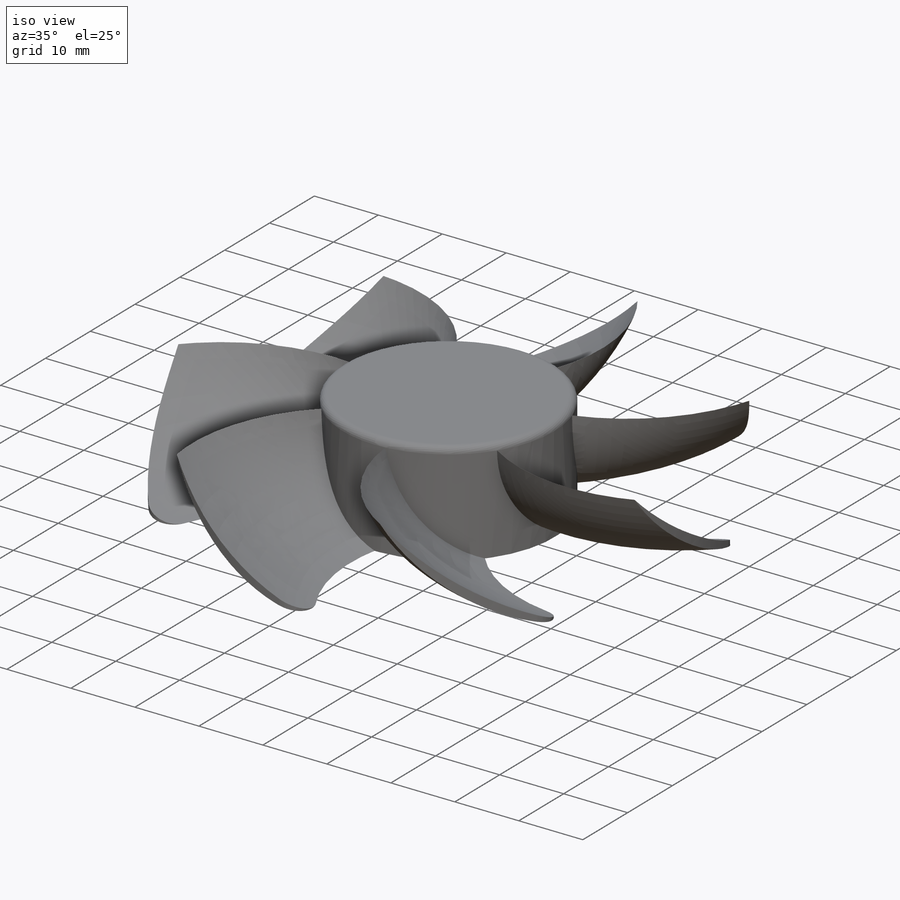
[diagram: iso view]
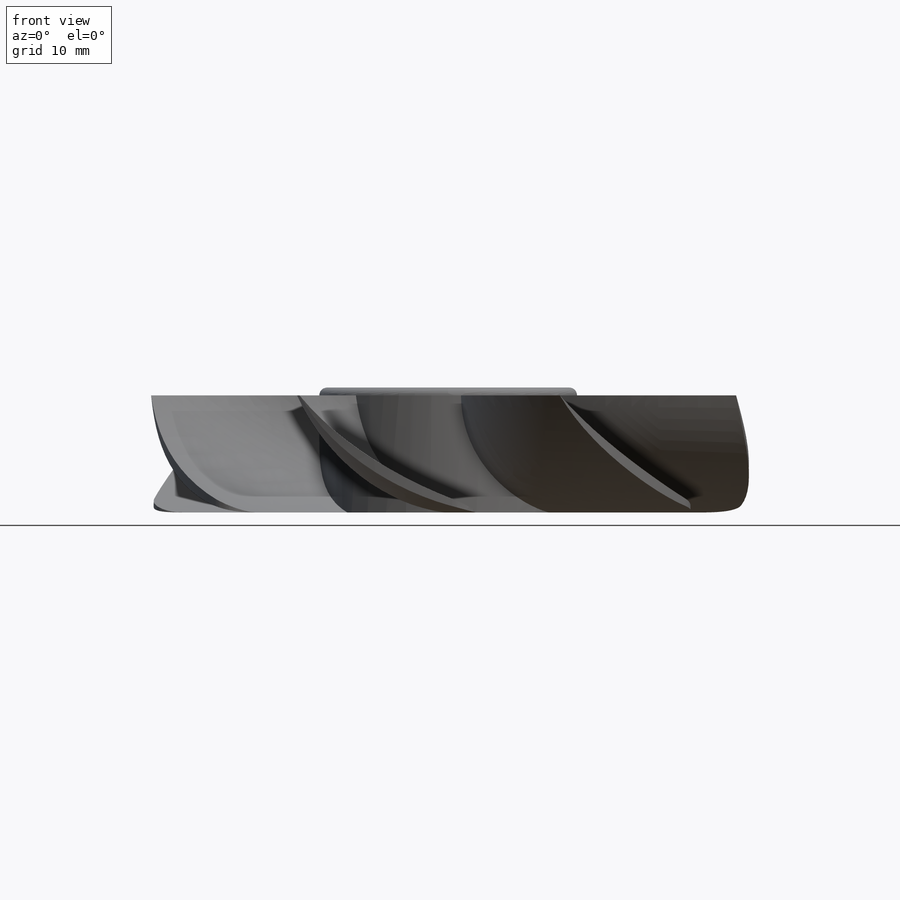
[diagram: front view]
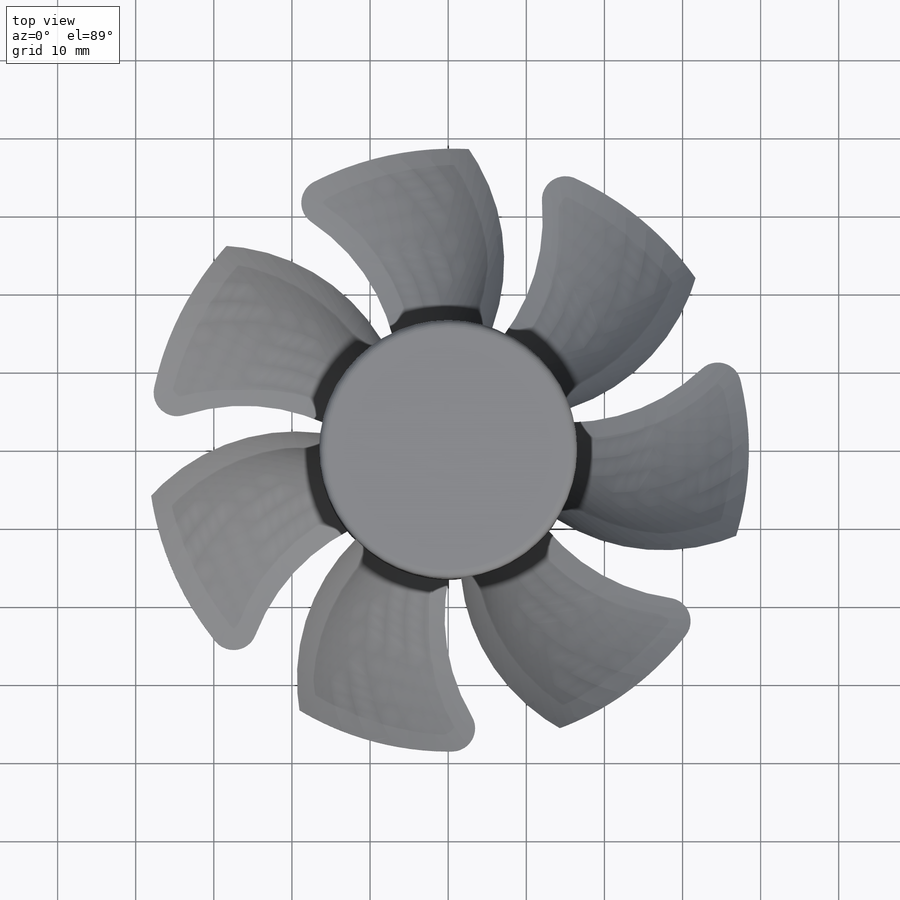
[diagram: top view]
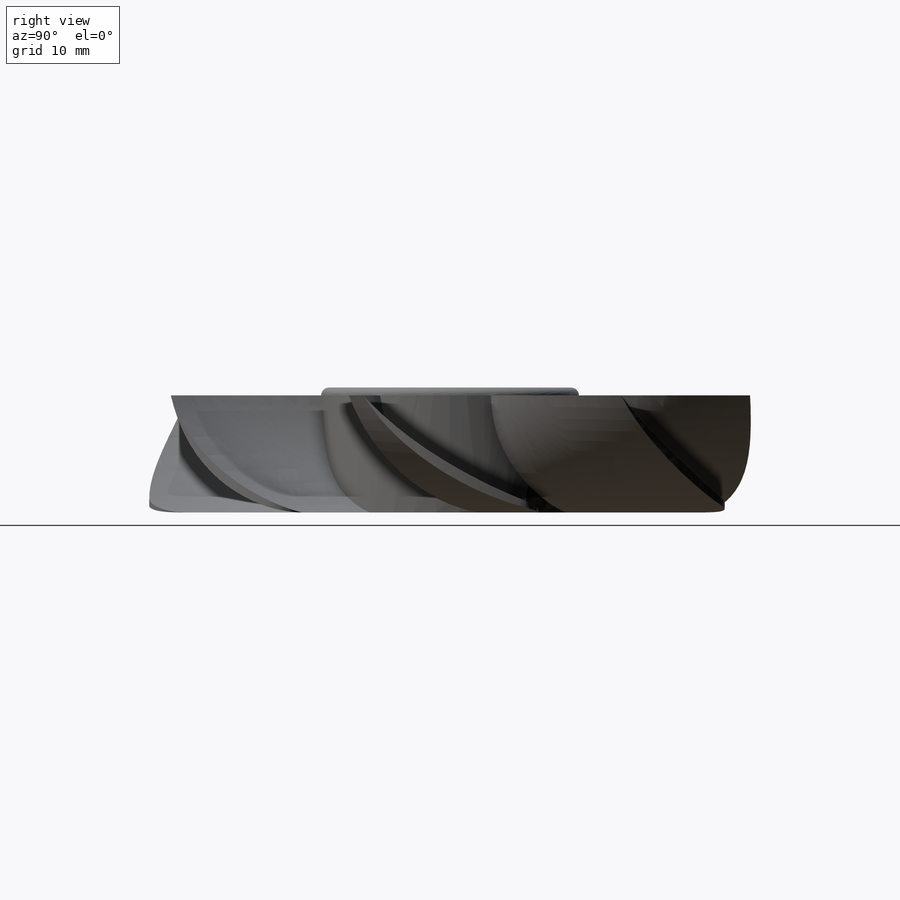
[diagram: right view]
SOLIDWORKS PART (.sldprt)
format: sldprt  version: not decoded by parser v0  size: 536,576 bytes
history: native  units: mm
features: sketch x11, plane x7, cut_extrude x3, extrude x2, fillet x2, material x1, cut_revolve x1, pattern_circular x1, chamfer x1 (+10 scaffold rows collapsed)
feature tree (39):
  scaffold x10  (default folders/planes/origin — collapsed)
  material  "PE Высокой плотности"
  plane  "Спереди"
  plane  "Сверху"
  plane  "Справа"
  sketch  "Эскиз1"  dims[D1=33.0mm]
  extrude  "Вытянуть1"  Depth=16mm
  fillet  "Скругление1"  Radius=1mm
  plane  "Плоскость1"  Offset=1mm
  plane  "Плоскость2"  Offset=7.5mm
  sketch  "Эскиз2"  dims[D3=25.0mm D1=20.0mm D2=50.0mm]
  sketch  "Эскиз3"  dims[c1.D2=17.0mm c1.D3=~39.941677mm c1.D1=15.0mm c2.D2=43.0mm c3.D2=35.0deg c3.D4=50.0mm]
  sketch  "Эскиз4"
  plane  "Плоскость3"
  sketch  "Эскиз5"  dims[D2=20.0mm D1=1.0mm]
  plane  "Плоскость4"
  sketch  "Эскиз7"  dims[D1=1.5mm D2=1.5mm]
  sketch  "Эскиз8"  dims[D1=25.0mm D2=38.5mm D3=5.0mm]
  cut_revolve  "Вырез-Повернуть2"  Angle=272deg
  sketch  "Эскиз12"  dims[D1=3.0mm]
  cut_extrude  "Вытянуть5"  [1 undecoded]
  pattern_circular  "Круговой массив1"  Count=7 Angle=360deg
  sketch  "Эскиз9"  dims[D1=1.5mm]
  cut_extrude  "Вытянуть2"  Depth=14.5mm
  chamfer  "Фаска1"  Distance=1mm Angle=45deg
  sketch  "Эскиз10"  dims[D1=2.5mm D2=4.0mm]
  extrude  "Вытянуть3"  Depth=3mm
  fillet  "Скругление2"  Radius=1mm
  sketch  "Эскиз11"  dims[D1=10.0mm]
  cut_extrude  "Вытянуть4"  Depth=0.5mm
decode coverage: 19 of 21 modeling features carry decoded parameters
note: ~ marks probable driven/reference dimensions
note: 1 parameter value undecoded
note: suppression state not decoded; provenance and decode notes live in map.json
